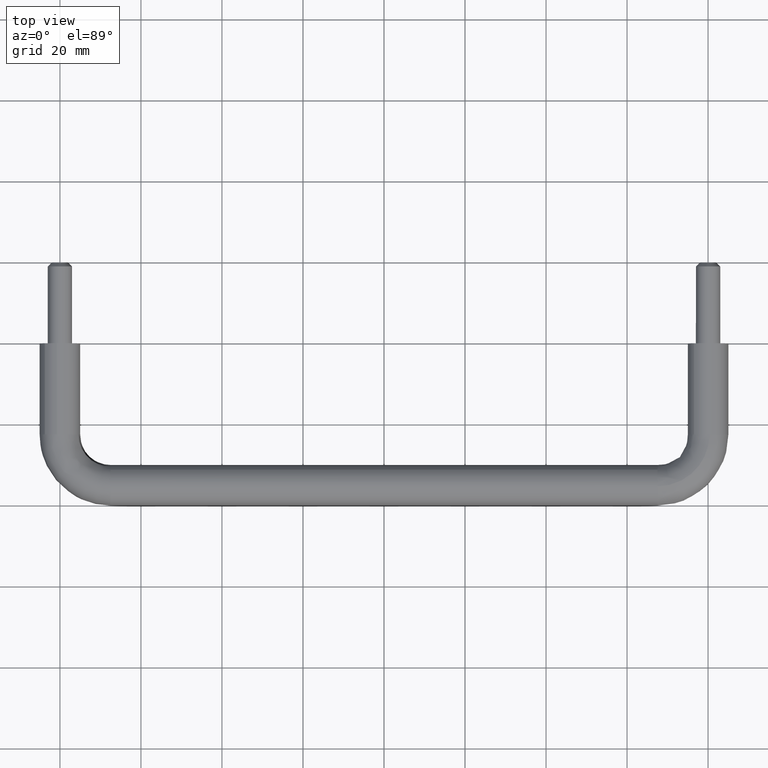
[diagram: clean part render]
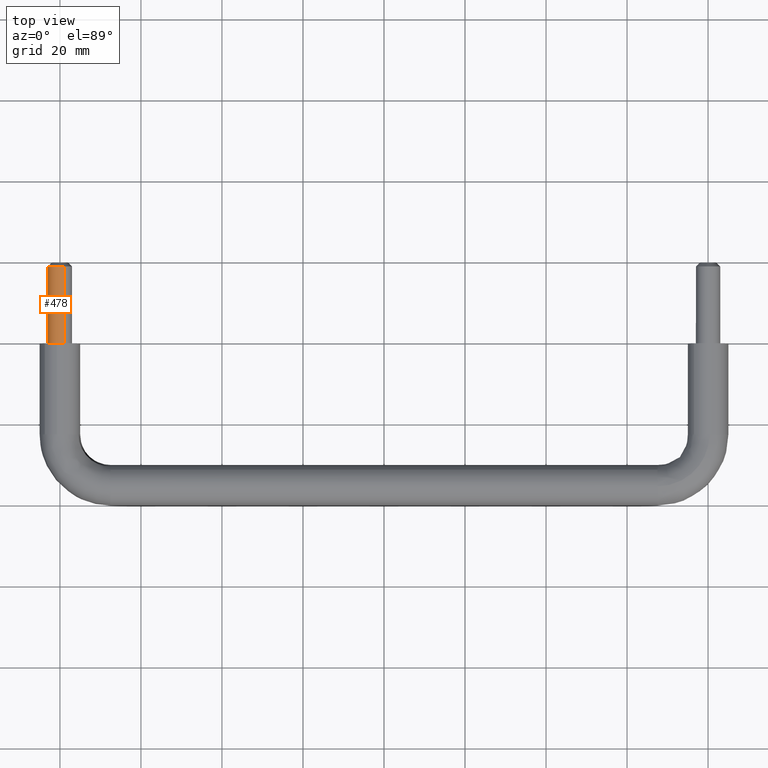
[diagram: same view with one face highlighted and labeled with its STEP entity id]
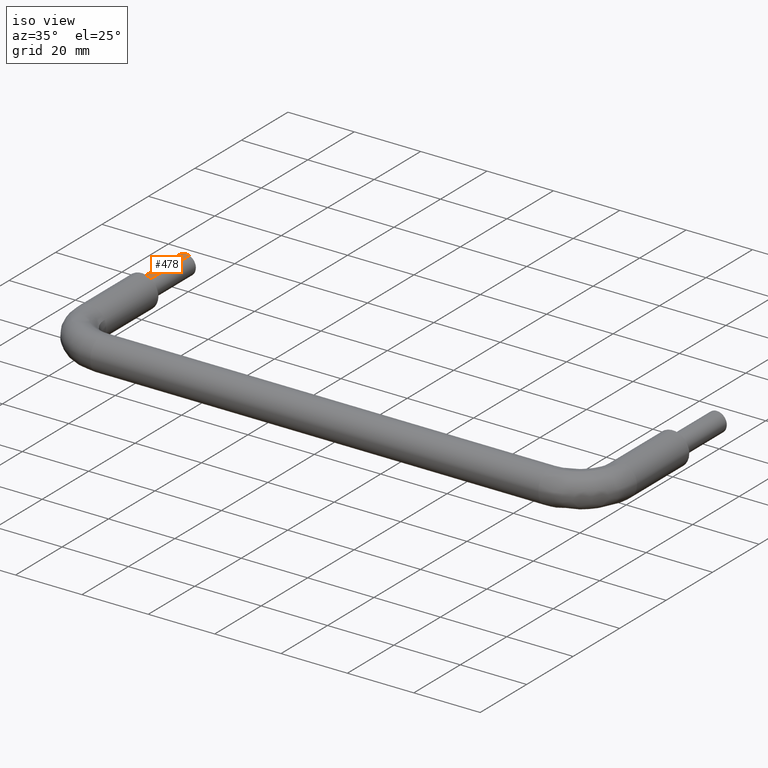
[diagram: same view with one face highlighted and labeled with its STEP entity id]
A machine part, top view. The second image highlights one B-rep face of the part: STEP entity #478.
A second angle (iso view) of the same face is appended — the face is thin or edge-on in the first view.
In plain terms, the highlighted face is a freeform B-spline surface patch.
Its self-contained STEP definition (entity closure, byte-faithful):
#384=CARTESIAN_POINT('',(1.054853923174717,19.475000000000005,2.808430736329971));
#385=CARTESIAN_POINT('',(0.632968355146225,19.475000000000009,2.966892058095451));
#386=CARTESIAN_POINT('',(0.183145618604572,19.475000000000009,2.994404395265600));
#387=CARTESIAN_POINT('',(-2.811258776661029,19.475000000000009,3.177550013870171));
#388=CARTESIAN_POINT('',(-2.994404395265600,19.475000000000009,0.183145618604571));
#389=CARTESIAN_POINT('',(1.054853923174717,-0.486874999999998,2.808430736329971));
#390=CARTESIAN_POINT('',(0.632968355146225,-0.486874999999998,2.966892058095451));
#391=CARTESIAN_POINT('',(0.183145618604572,-0.486874999999998,2.994404395265600));
#392=CARTESIAN_POINT('',(-2.811258776661029,-0.486874999999998,3.177550013870171));
#393=CARTESIAN_POINT('',(-2.994404395265600,-0.486874999999998,0.183145618604571));
#401=(BOUNDED_SURFACE()B_SPLINE_SURFACE(2,1,((#384,#389),(#385,#390),(#386,#391),(#387,#392),(#388,#393)),.UNSPECIFIED.,.F.,.F.,.U.)B_SPLINE_SURFACE_WITH_KNOTS((3,2,3),(2,2),(0.0,0.994112549695428,5.964675298172567),(0.0,19.961875000000010),.UNSPECIFIED.)GEOMETRIC_REPRESENTATION_ITEM()RATIONAL_B_SPLINE_SURFACE(((0.906274169979695,0.906274169979695),(0.941421356237309,0.941421356237309),(1.0,1.0),(0.707106781186548,0.707106781186548),(1.0,1.0)))REPRESENTATION_ITEM('')SURFACE());
#402=CARTESIAN_POINT('',(1.054853923179414,19.0,2.808430736328208));
#403=VERTEX_POINT('',#402);
#404=CARTESIAN_POINT('',(6.123032E-016,19.0,3.0));
#405=VERTEX_POINT('',#404);
#406=CARTESIAN_POINT('',(1.054853923179414,18.999999999999996,2.808430736328207));
#407=CARTESIAN_POINT('',(0.544822158205466,18.999999999999996,3.000000000000000));
#408=CARTESIAN_POINT('',(6.123032E-016,19.0,3.0));
#416=(BOUNDED_CURVE()B_SPLINE_CURVE(2,(#406,#407,#408),.UNSPECIFIED.,.F.,.U.)B_SPLINE_CURVE_WITH_KNOTS((3,3),(0.440284170898381,0.500000000000000),.UNSPECIFIED.)CURVE()GEOMETRIC_REPRESENTATION_ITEM()RATIONAL_B_SPLINE_CURVE((0.893499554635119,0.930038554401251,1.0))REPRESENTATION_ITEM(''));
#417=EDGE_CURVE('',#403,#405,#416,.T.);
#418=ORIENTED_EDGE('',*,*,#417,.T.);
#419=CARTESIAN_POINT('',(-2.994404395351551,18.999999999678440,0.183145619832893));
#420=VERTEX_POINT('',#419);
#421=CARTESIAN_POINT('',(6.123032E-016,19.0,3.0));
#422=CARTESIAN_POINT('',(-2.822118196114904,18.999999999999996,3.0));
#423=CARTESIAN_POINT('',(-2.994404395351551,18.999999999678444,0.183145619832893));
#431=(BOUNDED_CURVE()B_SPLINE_CURVE(2,(#421,#422,#423),.UNSPECIFIED.,.F.,.U.)B_SPLINE_CURVE_WITH_KNOTS((3,3),(0.500000000000000,0.739332961961112),.UNSPECIFIED.)CURVE()GEOMETRIC_REPRESENTATION_ITEM()RATIONAL_B_SPLINE_CURVE((1.0,0.719603993612210,0.976072041071273))REPRESENTATION_ITEM(''));
#432=EDGE_CURVE('',#405,#420,#431,.T.);
#433=ORIENTED_EDGE('',*,*,#432,.T.);
#434=CARTESIAN_POINT('',(-2.994404395220432,2.775558E-016,0.183145619343059));
#435=VERTEX_POINT('',#434);
#436=CARTESIAN_POINT('',(-2.994404395351551,18.999999999678440,0.183145619832893));
#437=CARTESIAN_POINT('',(-2.994404395220432,2.775558E-016,0.183145619343059));
#438=QUASI_UNIFORM_CURVE('',1,(#436,#437),.UNSPECIFIED.,.F.,.U.);
#439=EDGE_CURVE('',#420,#435,#438,.T.);
#440=ORIENTED_EDGE('',*,*,#439,.T.);
#441=CARTESIAN_POINT('',(6.123032E-016,0.0,3.0));
#442=VERTEX_POINT('',#441);
#443=CARTESIAN_POINT('',(6.123032E-016,0.0,3.0));
#444=CARTESIAN_POINT('',(-2.822118199322473,0.0,3.000000000000000));
#445=CARTESIAN_POINT('',(-2.994404395220432,2.775558E-016,0.183145619343059));
#453=(BOUNDED_CURVE()B_SPLINE_CURVE(2,(#443,#444,#445),.UNSPECIFIED.,.F.,.U.)B_SPLINE_CURVE_WITH_KNOTS((3,3),(0.500000000000000,0.739332962156860),.UNSPECIFIED.)CURVE()GEOMETRIC_REPRESENTATION_ITEM()RATIONAL_B_SPLINE_CURVE((1.0,0.719603993382877,0.976072041490798))REPRESENTATION_ITEM(''));
#454=EDGE_CURVE('',#442,#435,#453,.T.);
#455=ORIENTED_EDGE('',*,*,#454,.F.);
#456=CARTESIAN_POINT('',(1.054853923388410,2.450082E-016,2.808430736249708));
#457=VERTEX_POINT('',#456);
#458=CARTESIAN_POINT('',(1.054853923388410,2.450082E-016,2.808430736249708));
#459=CARTESIAN_POINT('',(0.544822158436081,0.0,3.0));
#460=CARTESIAN_POINT('',(6.123032E-016,0.0,3.0));
#468=(BOUNDED_CURVE()B_SPLINE_CURVE(2,(#458,#459,#460),.UNSPECIFIED.,.F.,.U.)B_SPLINE_CURVE_WITH_KNOTS((3,3),(0.440284170874873,0.500000000000000),.UNSPECIFIED.)CURVE()GEOMETRIC_REPRESENTATION_ITEM()RATIONAL_B_SPLINE_CURVE((0.893499554606350,0.930038554373709,1.0))REPRESENTATION_ITEM(''));
#469=EDGE_CURVE('',#457,#442,#468,.T.);
#470=ORIENTED_EDGE('',*,*,#469,.F.);
#471=CARTESIAN_POINT('',(1.054853923179414,19.0,2.808430736328208));
#472=CARTESIAN_POINT('',(1.054853923388410,2.450082E-016,2.808430736249708));
#473=QUASI_UNIFORM_CURVE('',1,(#471,#472),.UNSPECIFIED.,.F.,.U.);
#474=EDGE_CURVE('',#403,#457,#473,.T.);
#475=ORIENTED_EDGE('',*,*,#474,.F.);
#476=EDGE_LOOP('',(#418,#433,#440,#455,#470,#475));
#477=FACE_OUTER_BOUND('',#476,.T.);
#478=ADVANCED_FACE('',(#477),#401,.T.);